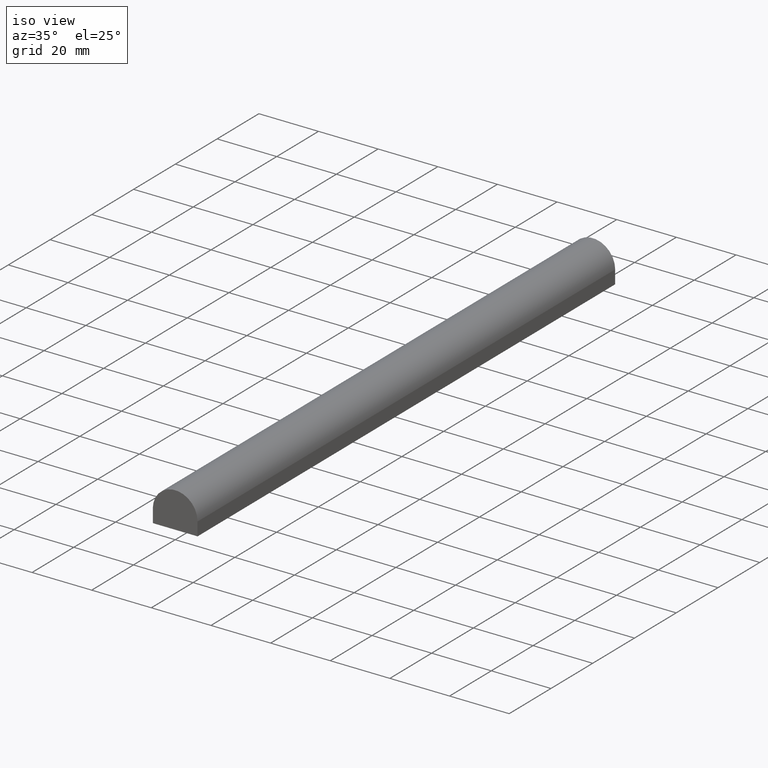
[diagram: clean part render]
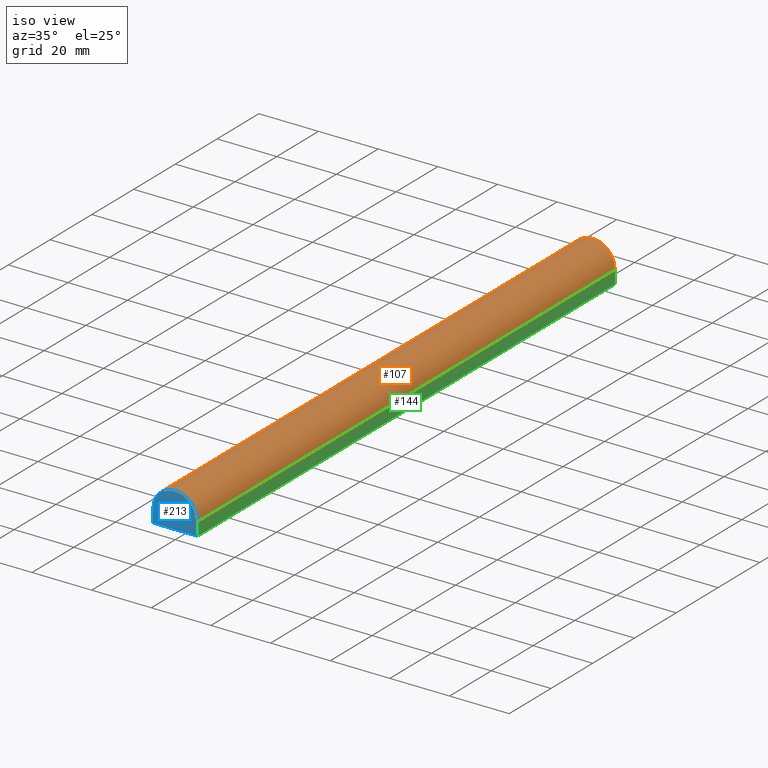
[diagram: same view with three faces highlighted in distinct colors, each labeled with its STEP entity id]
A machine part, iso view with three faces highlighted in distinct colors.
Their STEP definitions:

[orange] entity #107 — the highlighted cylindrical surface (edge-blend (fillet) strip) has radius 7.5 mm, axis along (0, -1, 0).
#6 = VECTOR ( 'NONE', #116, 1000.000000000000000 ) ;
#7 = DIRECTION ( 'NONE',  ( -0.0000000000000000000, -1.000000000000000000, -0.0000000000000000000 ) ) ;
#10 = CIRCLE ( 'NONE', #114, 7.500000000000000000 ) ;
#14 = CIRCLE ( 'NONE', #75, 7.500000000000000000 ) ;
#15 = CARTESIAN_POINT ( 'NONE',  ( 7.500000000000000000, 0.0000000000000000000, -1.500000000000000000 ) ) ;
#24 = CARTESIAN_POINT ( 'NONE',  ( 7.500000000000000000, 1000.000000000000000, -1.500000000000000000 ) ) ;
#25 = EDGE_CURVE ( 'NONE', #183, #89, #14, .T. ) ;
#35 = ORIENTED_EDGE ( 'NONE', *, *, #88, .F. ) ;
#36 = VERTEX_POINT ( 'NONE', #230 ) ;
#42 = DIRECTION ( 'NONE',  ( 0.0000000000000000000, 0.0000000000000000000, 1.000000000000000000 ) ) ;
#58 = DIRECTION ( 'NONE',  ( 0.0000000000000000000, -1.000000000000000000, 0.0000000000000000000 ) ) ;
#59 = CARTESIAN_POINT ( 'NONE',  ( 0.0000000000000000000, 0.0000000000000000000, -1.500000000000000000 ) ) ;
#68 = CARTESIAN_POINT ( 'NONE',  ( -7.500000000000000000, 200.0000000000000000, -1.500000000000000000 ) ) ;
#71 = LINE ( 'NONE', #24, #157 ) ;
#75 = AXIS2_PLACEMENT_3D ( 'NONE', #226, #7, #197 ) ;
#82 = AXIS2_PLACEMENT_3D ( 'NONE', #172, #58, #190 ) ;
#88 = EDGE_CURVE ( 'NONE', #183, #217, #71, .T. ) ;
#89 = VERTEX_POINT ( 'NONE', #68 ) ;
#101 = EDGE_CURVE ( 'NONE', #217, #36, #10, .T. ) ;
#107 = ADVANCED_FACE ( 'NONE', ( #165 ), #134, .T. ) ;
#111 = ORIENTED_EDGE ( 'NONE', *, *, #25, .T. ) ;
#114 = AXIS2_PLACEMENT_3D ( 'NONE', #59, #169, #42 ) ;
#116 = DIRECTION ( 'NONE',  ( 0.0000000000000000000, -1.000000000000000000, 0.0000000000000000000 ) ) ;
#123 = DIRECTION ( 'NONE',  ( 0.0000000000000000000, -1.000000000000000000, 0.0000000000000000000 ) ) ;
#134 = CYLINDRICAL_SURFACE ( 'NONE', #82, 7.500000000000000000 ) ;
#157 = VECTOR ( 'NONE', #123, 1000.000000000000000 ) ;
#162 = EDGE_LOOP ( 'NONE', ( #236, #35, #111, #204 ) ) ;
#165 = FACE_OUTER_BOUND ( 'NONE', #162, .T. ) ;
#169 = DIRECTION ( 'NONE',  ( -0.0000000000000000000, -1.000000000000000000, -0.0000000000000000000 ) ) ;
#172 = CARTESIAN_POINT ( 'NONE',  ( 0.0000000000000000000, 1000.000000000000000, -1.500000000000000000 ) ) ;
#183 = VERTEX_POINT ( 'NONE', #185 ) ;
#185 = CARTESIAN_POINT ( 'NONE',  ( 7.500000000000000000, 200.0000000000000000, -1.500000000000000000 ) ) ;
#190 = DIRECTION ( 'NONE',  ( 0.0000000000000000000, 0.0000000000000000000, -1.000000000000000000 ) ) ;
#196 = LINE ( 'NONE', #237, #6 ) ;
#197 = DIRECTION ( 'NONE',  ( 0.0000000000000000000, 0.0000000000000000000, 1.000000000000000000 ) ) ;
#204 = ORIENTED_EDGE ( 'NONE', *, *, #214, .T. ) ;
#214 = EDGE_CURVE ( 'NONE', #89, #36, #196, .T. ) ;
#217 = VERTEX_POINT ( 'NONE', #15 ) ;
#226 = CARTESIAN_POINT ( 'NONE',  ( 0.0000000000000000000, 200.0000000000000000, -1.500000000000000000 ) ) ;
#230 = CARTESIAN_POINT ( 'NONE',  ( -7.500000000000000000, 0.0000000000000000000, -1.500000000000000000 ) ) ;
#236 = ORIENTED_EDGE ( 'NONE', *, *, #101, .F. ) ;
#237 = CARTESIAN_POINT ( 'NONE',  ( -7.500000000000000000, 1000.000000000000000, -1.500000000000000000 ) ) ;

[blue] entity #213 — the highlighted planar face has unit normal (0, 1, 0).
#10 = CIRCLE ( 'NONE', #114, 7.500000000000000000 ) ;
#15 = CARTESIAN_POINT ( 'NONE',  ( 7.500000000000000000, 0.0000000000000000000, -1.500000000000000000 ) ) ;
#22 = EDGE_CURVE ( 'NONE', #219, #141, #211, .T. ) ;
#28 = ORIENTED_EDGE ( 'NONE', *, *, #60, .T. ) ;
#36 = VERTEX_POINT ( 'NONE', #230 ) ;
#37 = DIRECTION ( 'NONE',  ( 1.000000000000000000, 0.0000000000000000000, 0.0000000000000000000 ) ) ;
#40 = VECTOR ( 'NONE', #136, 1000.000000000000000 ) ;
#42 = DIRECTION ( 'NONE',  ( 0.0000000000000000000, 0.0000000000000000000, 1.000000000000000000 ) ) ;
#45 = VECTOR ( 'NONE', #47, 1000.000000000000000 ) ;
#47 = DIRECTION ( 'NONE',  ( 1.000000000000000000, -0.0000000000000000000, -0.0000000000000000000 ) ) ;
#56 = CARTESIAN_POINT ( 'NONE',  ( 7.500000000000000000, 0.0000000000000000000, -6.000000000000000000 ) ) ;
#59 = CARTESIAN_POINT ( 'NONE',  ( 0.0000000000000000000, 0.0000000000000000000, -1.500000000000000000 ) ) ;
#60 = EDGE_CURVE ( 'NONE', #36, #219, #115, .T. ) ;
#77 = CARTESIAN_POINT ( 'NONE',  ( 0.0000000000000000000, 0.0000000000000000000, 0.0000000000000000000 ) ) ;
#84 = EDGE_LOOP ( 'NONE', ( #159, #173, #28, #135 ) ) ;
#101 = EDGE_CURVE ( 'NONE', #217, #36, #10, .T. ) ;
#114 = AXIS2_PLACEMENT_3D ( 'NONE', #59, #169, #42 ) ;
#115 = LINE ( 'NONE', #208, #202 ) ;
#135 = ORIENTED_EDGE ( 'NONE', *, *, #22, .T. ) ;
#136 = DIRECTION ( 'NONE',  ( -0.0000000000000000000, -0.0000000000000000000, 1.000000000000000000 ) ) ;
#141 = VERTEX_POINT ( 'NONE', #56 ) ;
#143 = DIRECTION ( 'NONE',  ( -0.0000000000000000000, -0.0000000000000000000, -1.000000000000000000 ) ) ;
#159 = ORIENTED_EDGE ( 'NONE', *, *, #178, .T. ) ;
#164 = DIRECTION ( 'NONE',  ( -0.0000000000000000000, 1.000000000000000000, 0.0000000000000000000 ) ) ;
#169 = DIRECTION ( 'NONE',  ( -0.0000000000000000000, -1.000000000000000000, -0.0000000000000000000 ) ) ;
#173 = ORIENTED_EDGE ( 'NONE', *, *, #101, .T. ) ;
#177 = LINE ( 'NONE', #238, #40 ) ;
#178 = EDGE_CURVE ( 'NONE', #141, #217, #177, .T. ) ;
#193 = AXIS2_PLACEMENT_3D ( 'NONE', #77, #164, #37 ) ;
#195 = CARTESIAN_POINT ( 'NONE',  ( 0.0000000000000000000, 0.0000000000000000000, -6.000000000000000000 ) ) ;
#200 = FACE_OUTER_BOUND ( 'NONE', #84, .T. ) ;
#202 = VECTOR ( 'NONE', #143, 1000.000000000000000 ) ;
#203 = PLANE ( 'NONE',  #193 ) ;
#208 = CARTESIAN_POINT ( 'NONE',  ( -7.500000000000000000, 0.0000000000000000000, 0.0000000000000000000 ) ) ;
#211 = LINE ( 'NONE', #195, #45 ) ;
#213 = ADVANCED_FACE ( 'NONE', ( #200 ), #203, .F. ) ;
#217 = VERTEX_POINT ( 'NONE', #15 ) ;
#219 = VERTEX_POINT ( 'NONE', #220 ) ;
#220 = CARTESIAN_POINT ( 'NONE',  ( -7.500000000000000000, 0.0000000000000000000, -6.000000000000000000 ) ) ;
#230 = CARTESIAN_POINT ( 'NONE',  ( -7.500000000000000000, 0.0000000000000000000, -1.500000000000000000 ) ) ;
#238 = CARTESIAN_POINT ( 'NONE',  ( 7.500000000000000000, 0.0000000000000000000, 0.0000000000000000000 ) ) ;

[green] entity #144 — the highlighted planar face has unit normal (1, 0, 0).
#12 = FACE_OUTER_BOUND ( 'NONE', #16, .T. ) ;
#15 = CARTESIAN_POINT ( 'NONE',  ( 7.500000000000000000, 0.0000000000000000000, -1.500000000000000000 ) ) ;
#16 = EDGE_LOOP ( 'NONE', ( #93, #27, #133, #49 ) ) ;
#21 = PLANE ( 'NONE',  #161 ) ;
#24 = CARTESIAN_POINT ( 'NONE',  ( 7.500000000000000000, 1000.000000000000000, -1.500000000000000000 ) ) ;
#27 = ORIENTED_EDGE ( 'NONE', *, *, #131, .F. ) ;
#39 = DIRECTION ( 'NONE',  ( 1.000000000000000000, 0.0000000000000000000, 0.0000000000000000000 ) ) ;
#40 = VECTOR ( 'NONE', #136, 1000.000000000000000 ) ;
#49 = ORIENTED_EDGE ( 'NONE', *, *, #88, .T. ) ;
#55 = CARTESIAN_POINT ( 'NONE',  ( 7.500000000000000000, 200.0000000000000000, 0.0000000000000000000 ) ) ;
#56 = CARTESIAN_POINT ( 'NONE',  ( 7.500000000000000000, 0.0000000000000000000, -6.000000000000000000 ) ) ;
#71 = LINE ( 'NONE', #24, #157 ) ;
#76 = VECTOR ( 'NONE', #187, 1000.000000000000000 ) ;
#78 = CARTESIAN_POINT ( 'NONE',  ( 7.500000000000000000, 1000.000000000000000, -6.000000000000000000 ) ) ;
#88 = EDGE_CURVE ( 'NONE', #183, #217, #71, .T. ) ;
#93 = ORIENTED_EDGE ( 'NONE', *, *, #178, .F. ) ;
#95 = CARTESIAN_POINT ( 'NONE',  ( 7.500000000000000000, 1000.000000000000000, -6.000000000000000000 ) ) ;
#100 = CARTESIAN_POINT ( 'NONE',  ( 7.500000000000000000, 200.0000000000000000, -6.000000000000000000 ) ) ;
#122 = DIRECTION ( 'NONE',  ( -0.0000000000000000000, -0.0000000000000000000, 1.000000000000000000 ) ) ;
#123 = DIRECTION ( 'NONE',  ( 0.0000000000000000000, -1.000000000000000000, 0.0000000000000000000 ) ) ;
#131 = EDGE_CURVE ( 'NONE', #229, #141, #163, .T. ) ;
#133 = ORIENTED_EDGE ( 'NONE', *, *, #215, .T. ) ;
#136 = DIRECTION ( 'NONE',  ( -0.0000000000000000000, -0.0000000000000000000, 1.000000000000000000 ) ) ;
#141 = VERTEX_POINT ( 'NONE', #56 ) ;
#144 = ADVANCED_FACE ( 'NONE', ( #12 ), #21, .T. ) ;
#150 = DIRECTION ( 'NONE',  ( 0.0000000000000000000, 0.0000000000000000000, -1.000000000000000000 ) ) ;
#157 = VECTOR ( 'NONE', #123, 1000.000000000000000 ) ;
#161 = AXIS2_PLACEMENT_3D ( 'NONE', #95, #39, #150 ) ;
#163 = LINE ( 'NONE', #78, #76 ) ;
#175 = LINE ( 'NONE', #55, #182 ) ;
#177 = LINE ( 'NONE', #238, #40 ) ;
#178 = EDGE_CURVE ( 'NONE', #141, #217, #177, .T. ) ;
#182 = VECTOR ( 'NONE', #122, 1000.000000000000000 ) ;
#183 = VERTEX_POINT ( 'NONE', #185 ) ;
#185 = CARTESIAN_POINT ( 'NONE',  ( 7.500000000000000000, 200.0000000000000000, -1.500000000000000000 ) ) ;
#187 = DIRECTION ( 'NONE',  ( 0.0000000000000000000, -1.000000000000000000, 0.0000000000000000000 ) ) ;
#215 = EDGE_CURVE ( 'NONE', #229, #183, #175, .T. ) ;
#217 = VERTEX_POINT ( 'NONE', #15 ) ;
#229 = VERTEX_POINT ( 'NONE', #100 ) ;
#238 = CARTESIAN_POINT ( 'NONE',  ( 7.500000000000000000, 0.0000000000000000000, 0.0000000000000000000 ) ) ;